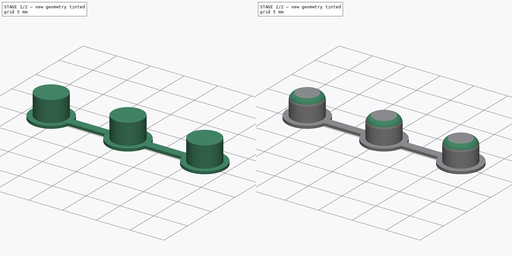
[diagram: build sequence overview — one tinted view per stage of 2, left to right]
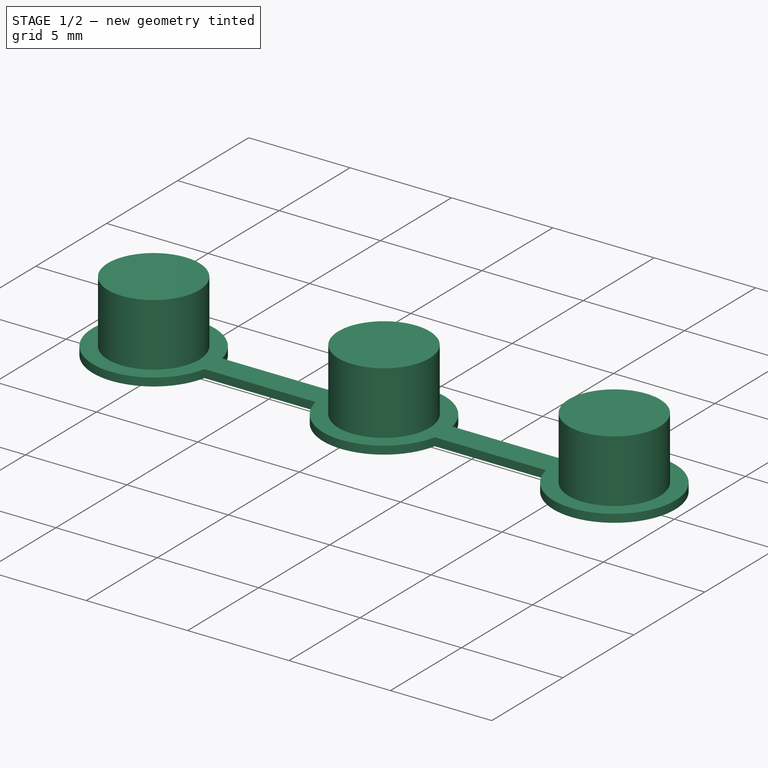
[diagram: stage 1 of 2 — iso view after this stage's code; geometry added in this stage tinted green]
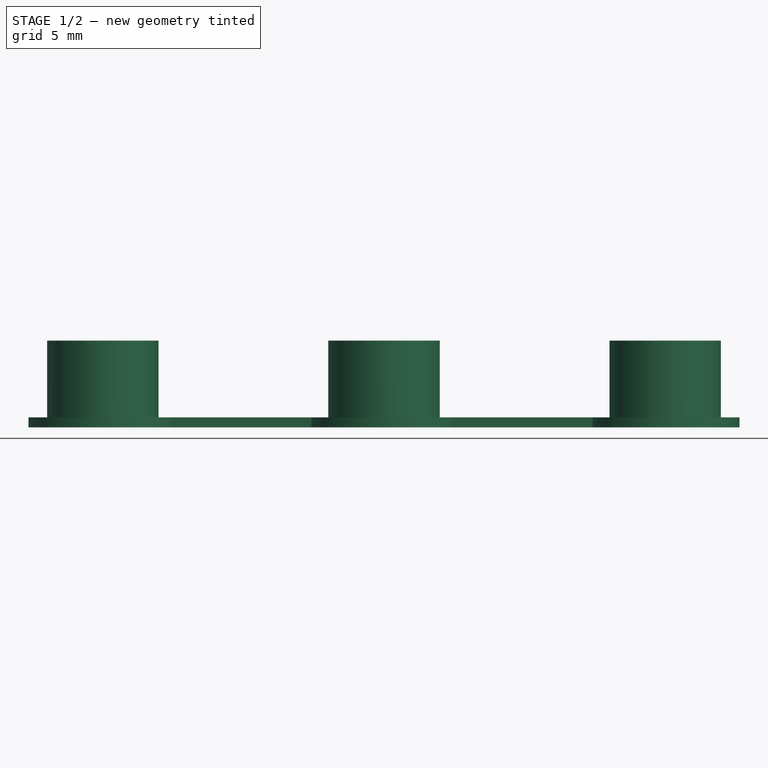
[diagram: stage 1 of 2 — front view after this stage's code; geometry added in this stage tinted green]
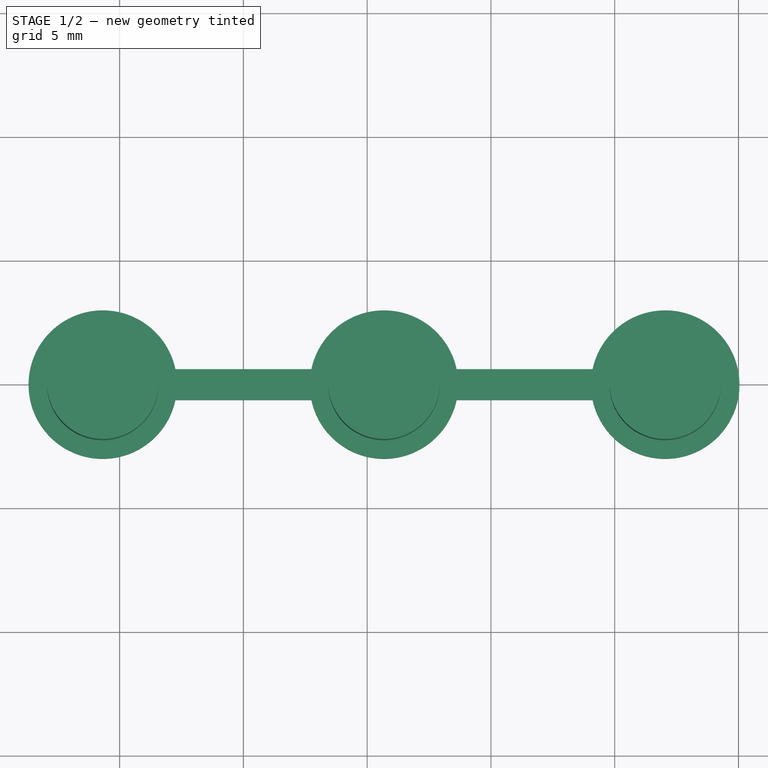
[diagram: stage 1 of 2 — top view after this stage's code; geometry added in this stage tinted green]
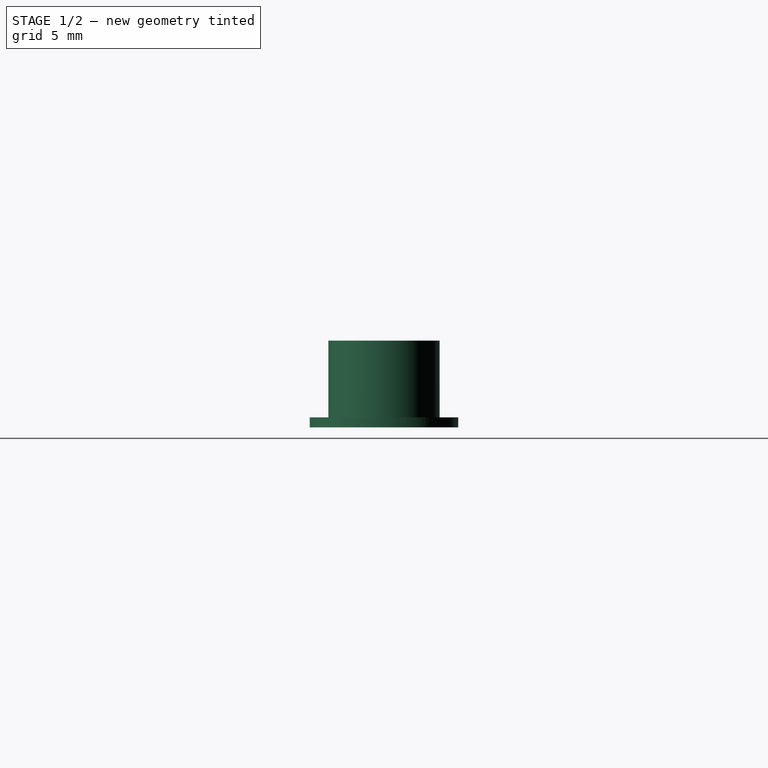
[diagram: stage 1 of 2 — right view after this stage's code; geometry added in this stage tinted green]
FCSTD DOCUMENT  (FreeCAD 2023.321R14555 (Git shallow))
Label: LilyGO-T-TWR-Plus-buttons
License: All rights reserved
LicenseURL: http://en.wikipedia.org/wiki/All_rights_reserved
objects: Sketcher::SketchObject×2, PartDesign::Pad×2, PartDesign::Fillet×1, PartDesign::Body×1, App::TextDocument×1
note: 14 computed .brp shape members not serialized (recipe doc carries the construction recipe); baked Part::Feature solids carry a one-line shape summary decoded from their .brp

FEATURE [Sketcher::SketchObject] Sketch  label="Sketch_button_set"
  ArcFitTolerance = 1e-06
  AttachmentSupport = -> [XY_Plane]
  ExternalBSplineMaxDegree = 5
  ExternalBSplineTolerance = 0.0001
  FullyConstrained = true
  InternalTolerance = 1e-06
  InvalidShape = false
  MakeInternals = false
  MapMode = 5
  Support = -> [XY_Plane]
  TreeRank = 12
  ValidateShape = false
  sketch-geometry (8):
    g0: ArcOfCircle CenterX=-5.68 CenterY=0 CenterZ=0 NormalX=0 NormalY=0 NormalZ=1 AngleXU=0 Radius=3 StartAngle=0.209871 EndAngle=6.07331
    g1: ArcOfCircle CenterX=5.68 CenterY=0 CenterZ=0 NormalX=0 NormalY=0 NormalZ=1 AngleXU=0 Radius=3 StartAngle=3.35146 EndAngle=6.07331
    g2: LineSegment StartX=-2.74583 StartY=0.625 StartZ=0 EndX=2.74583 EndY=0.625 EndZ=0
    g3: LineSegment StartX=-2.74583 StartY=-0.625 StartZ=0 EndX=2.74583 EndY=-0.625 EndZ=0
    g4: ArcOfCircle CenterX=17.04 CenterY=0 CenterZ=0 NormalX=0 NormalY=0 NormalZ=1 AngleXU=0 Radius=3 StartAngle=3.35146 EndAngle=9.21491
    g5: LineSegment StartX=8.61417 StartY=0.625 StartZ=0 EndX=14.1058 EndY=0.625 EndZ=0
    g6: LineSegment StartX=8.61417 StartY=-0.625 StartZ=0 EndX=14.1058 EndY=-0.625 EndZ=0
    g7: ArcOfCircle CenterX=5.68 CenterY=0 CenterZ=0 NormalX=0 NormalY=0 NormalZ=1 AngleXU=0 Radius=3 StartAngle=0.209871 EndAngle=2.93172
  constraints (26):
    c: PointOnObject(g0,g-1)
    c: Diameter(g0) = 6
    c: Equal(g0,g1)
    c: Horizontal(g2)
    c: Horizontal(g3)
    c: DistanceY(g3,g2) = 1.25
    c: DistanceX(g0,g1) = 11.36
    c: Vertical(g2,g3)
    c: Symmetric(g1,g0,g-1)
    c: Coincident(g0,g3)
    c: Coincident(g0,g2)
    c: Coincident(g7,g2)
    c: Coincident(g1,g3)
    c: PointOnObject(g4,g-1)
    c: Equal(g0,g4)
    c: DistanceX(g1,g4) = 11.36
    c: Horizontal(g5)
    c: Horizontal(g6)
    c: Horizontal(g7,g5)
    c: Horizontal(g1,g6)
    c: Equal(g1,g7)
    c: Coincident(g1,g6)
    c: Coincident(g7,g5)
    c: Coincident(g1,g7)
    c: Coincident(g4,g5)
    c: Coincident(g4,g6)
FEATURE [PartDesign::Pad] Pad
  AddSubType = 0
  AlongSketchNormal = false
  AutoTaperInnerAngle = true
  CheckUpToFaceLimits = true
  ClaimChildren = false
  Direction = (0,0,1)
  Fit = 0
  FitJoin = 0
  InnerFit = 0
  InnerFitJoin = 0
  InvalidShape = false
  Length = 0.4
  Length2 = 100
  Linearize = true
  NewSolid = false
  Profile = -> Sketch
  Suppress = false
  TaperInnerAngle = 0
  TaperInnerAngleRev = 0
  TreeRank = 13
  Type = 0
  ValidateShape = true
  _ProfileBasedVersion = 1
FEATURE [Sketcher::SketchObject] Sketch001
  ArcFitTolerance = 1e-06
  AttachmentSupport = -> [XY_Plane]
  ExternalBSplineMaxDegree = 5
  ExternalBSplineTolerance = 0.0001
  ExternalGeometry = -> [Pad]
  FullyConstrained = true
  InternalTolerance = 1e-06
  InvalidShape = false
  MakeInternals = false
  MapMode = 5
  Support = -> [XY_Plane]
  TreeRank = 14
  ValidateShape = false
  sketch-geometry (3):
    g0: Circle CenterX=-5.68 CenterY=0 CenterZ=0 NormalX=0 NormalY=0 NormalZ=1 AngleXU=0 Radius=2.25
    g1: Circle CenterX=5.68 CenterY=0 CenterZ=0 NormalX=0 NormalY=0 NormalZ=1 AngleXU=0 Radius=2.25
    g2: Circle CenterX=17.04 CenterY=0 CenterZ=0 NormalX=0 NormalY=0 NormalZ=1 AngleXU=0 Radius=2.25
  constraints (6):
    c: Coincident(g0,g-3)
    c: Coincident(g1,g-4)
    c: Coincident(g2,g-5)
    c: Diameter(g0) = 4.5
    c: Equal(g1,g0)
    c: Equal(g2,g1)
FEATURE [PartDesign::Pad] Pad001
  AddSubType = 0
  AlongSketchNormal = false
  AutoTaperInnerAngle = true
  BaseFeature = -> Pad
  CheckUpToFaceLimits = true
  ClaimChildren = false
  Direction = (0,0,1)
  Fit = 0
  FitJoin = 0
  InnerFit = 0
  InnerFitJoin = 0
  InvalidShape = false
  Length = 3.5
  Length2 = 100
  Linearize = true
  NewSolid = false
  Profile = -> Sketch001
  Suppress = false
  TaperInnerAngle = 0
  TaperInnerAngleRev = 0
  TreeRank = 15
  Type = 0
  ValidateShape = true
  _ProfileBasedVersion = 1
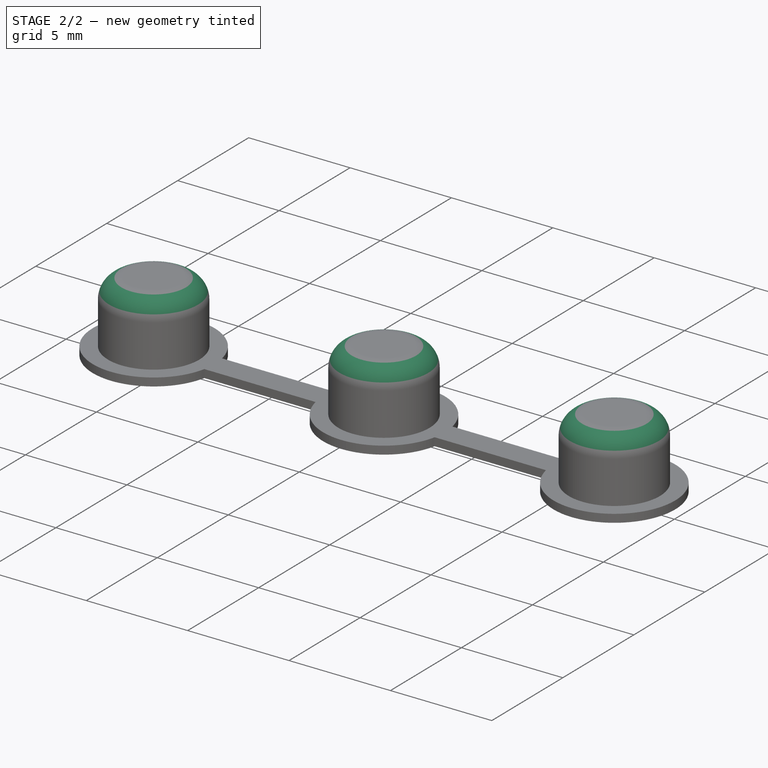
[diagram: stage 2 of 2 — iso view after this stage's code; geometry added in this stage tinted green]
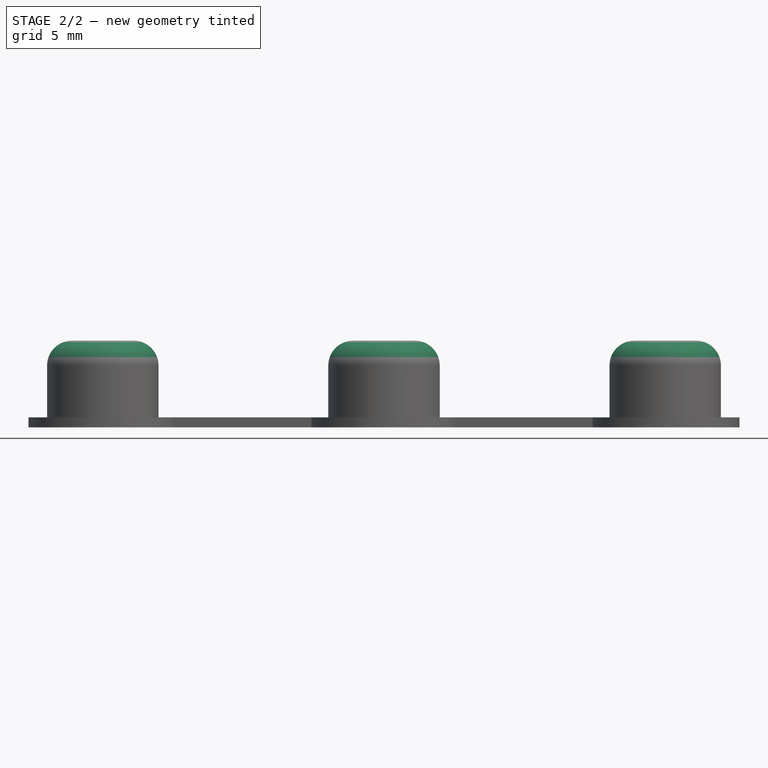
[diagram: stage 2 of 2 — front view after this stage's code; geometry added in this stage tinted green]
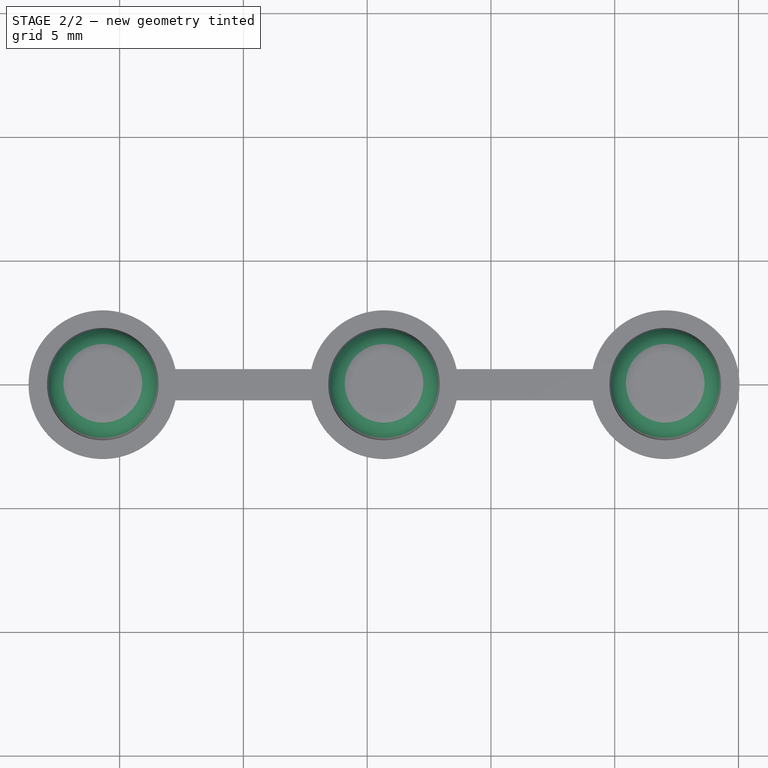
[diagram: stage 2 of 2 — top view after this stage's code; geometry added in this stage tinted green]
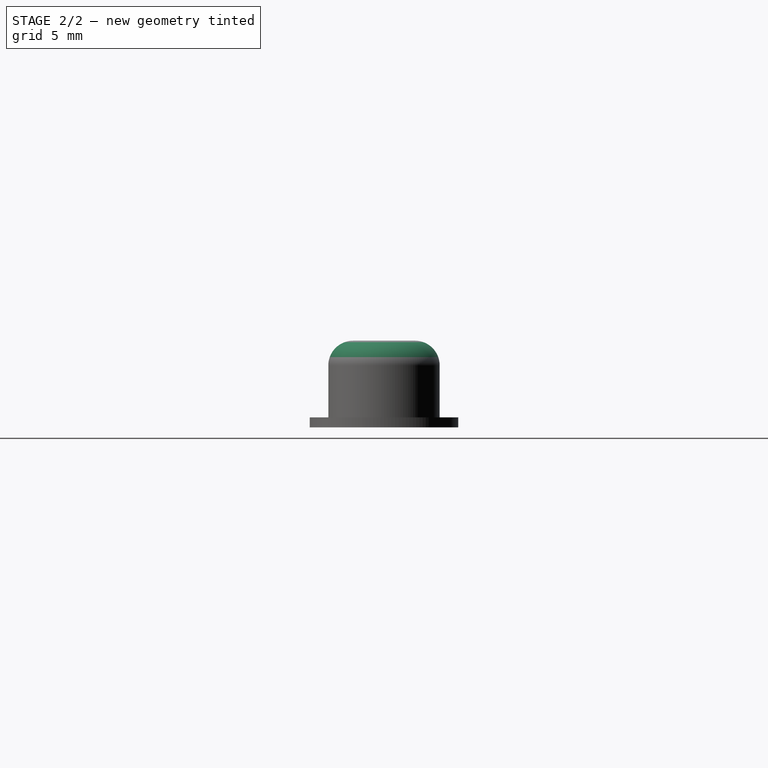
[diagram: stage 2 of 2 — right view after this stage's code; geometry added in this stage tinted green]
FEATURE [PartDesign::Fillet] Fillet
  AddSubType = 0
  Base = -> Pad001 [Edge32,Edge34,Edge36]
  BaseFeature = -> Pad001
  InvalidShape = false
  NewSolid = false
  Radius = 1
  SupportTransform = false
  Suppress = false
  TreeRank = 16
  ValidateShape = true
FEATURE [PartDesign::Body] Body
  AutoGroupSolids = false
  ClaimAllChildren = false
  ExportMode = 0
  Group = -> [Sketch,Pad,Sketch001,Pad001,Fillet]
  InvalidShape = false
  Origin = -> Origin
  Tip = -> Fillet
  TreeRank = 11
  ValidateShape = false
  _ExportChildren = -> [Pad,Pad001,Fillet]
  _GroupVersion = 1
FEATURE [App::TextDocument] Text_document  label="README first"
  Text = For the current LILYGO T-TWR-Plus revision (initial rev):\n\nThere are two button sets with different lengths. Change the Sketch_button_set sketch length value pointed to by the arrow :)\n\n\n1. The shorter length are the two closest to the sma connector: 11.36 mm\n2. The longer length are the two closest to the wheel button: 12.06 mm
  TreeRank = 10
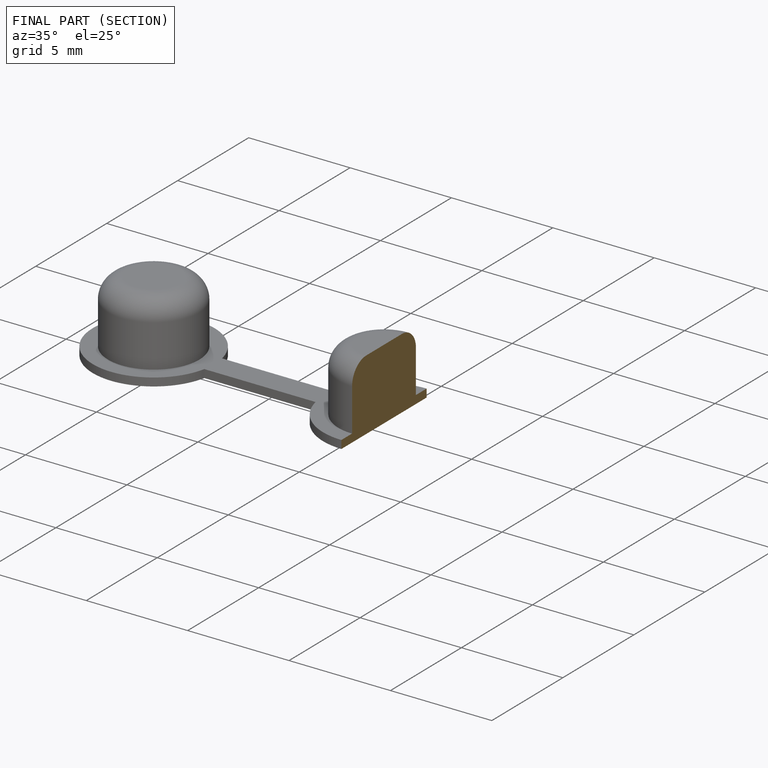
[diagram: finished part — half-section view (interior)]
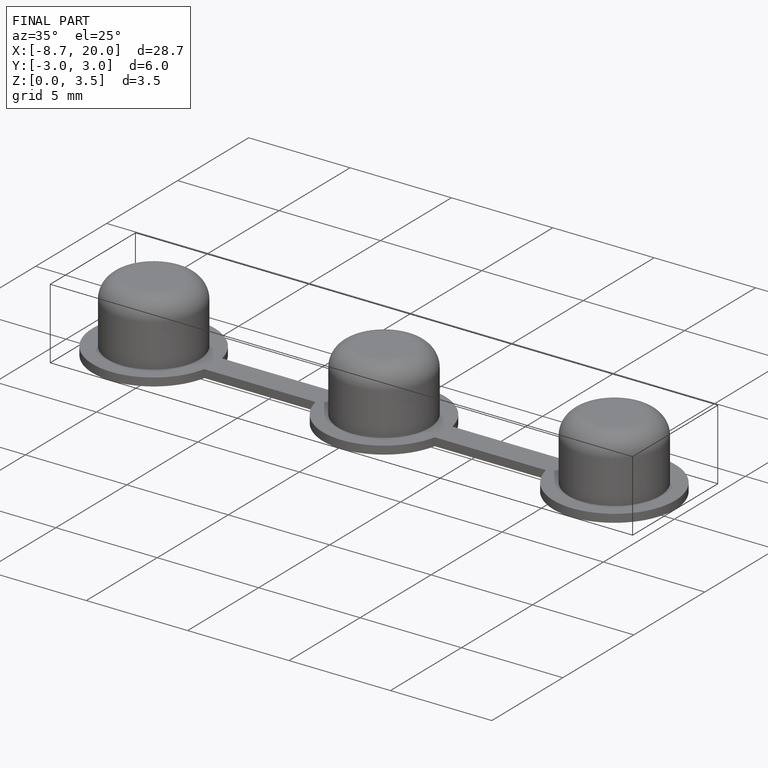
[diagram: finished part — iso view with bounding-box wireframe]
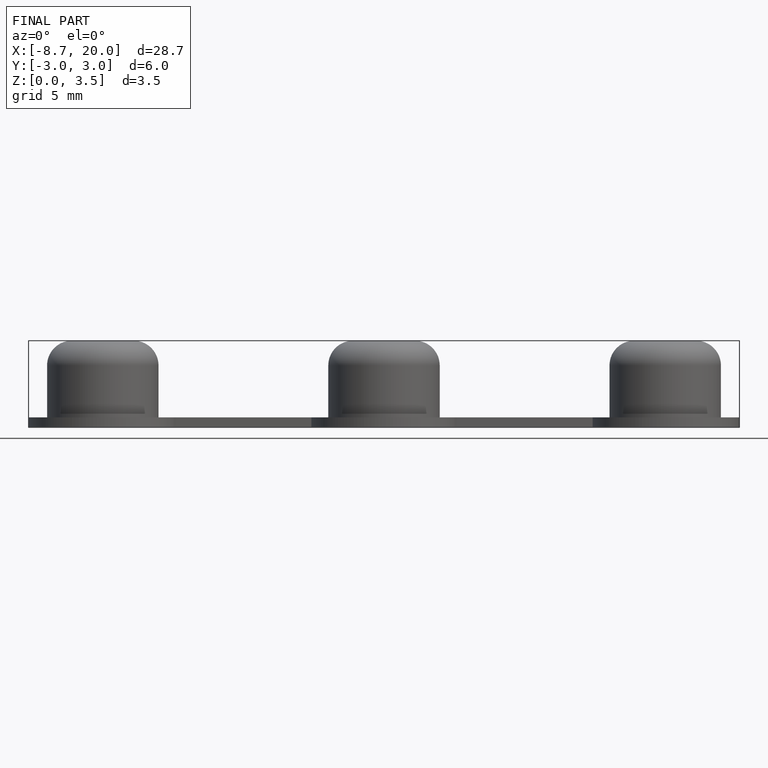
[diagram: finished part — front view with bounding-box wireframe]
